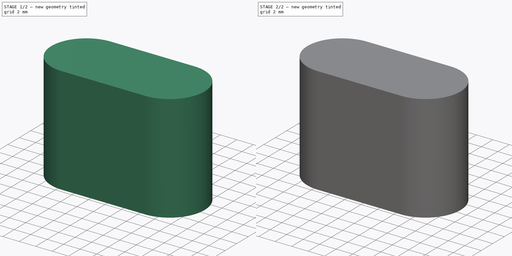
[diagram: build sequence overview — one tinted view per stage of 2, left to right]
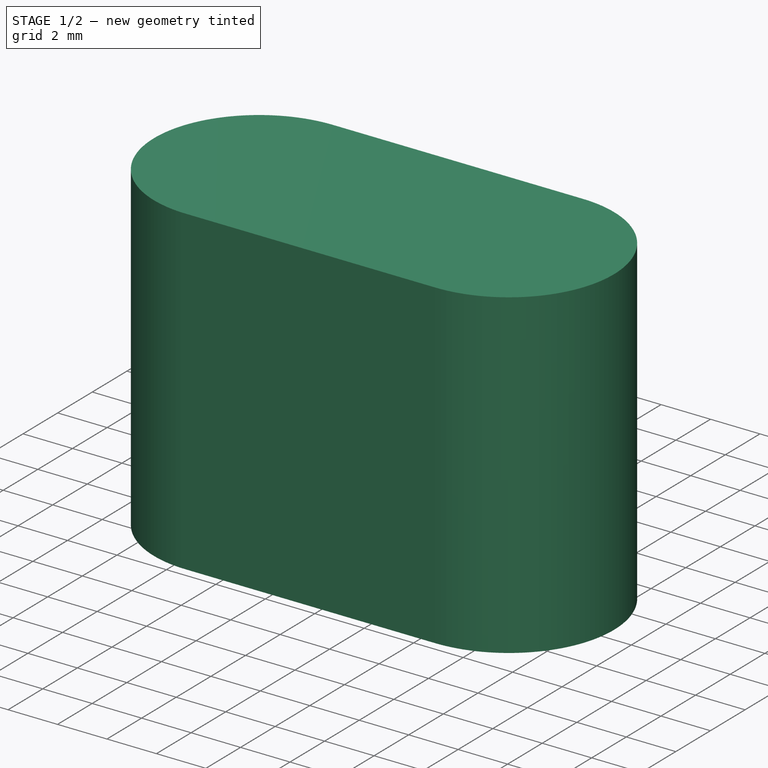
[diagram: stage 1 of 2 — iso view after this stage's code; geometry added in this stage tinted green]
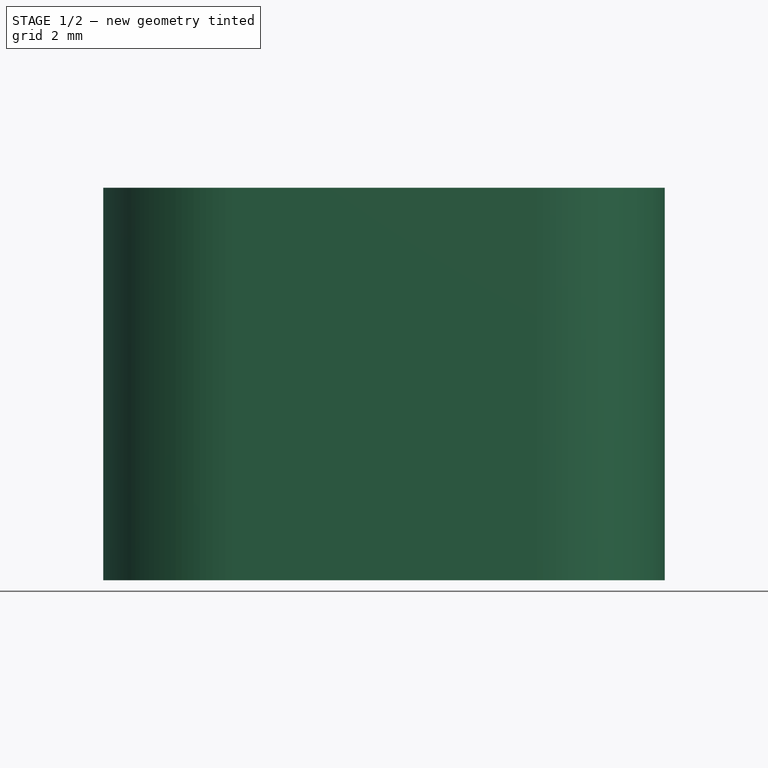
[diagram: stage 1 of 2 — front view after this stage's code; geometry added in this stage tinted green]
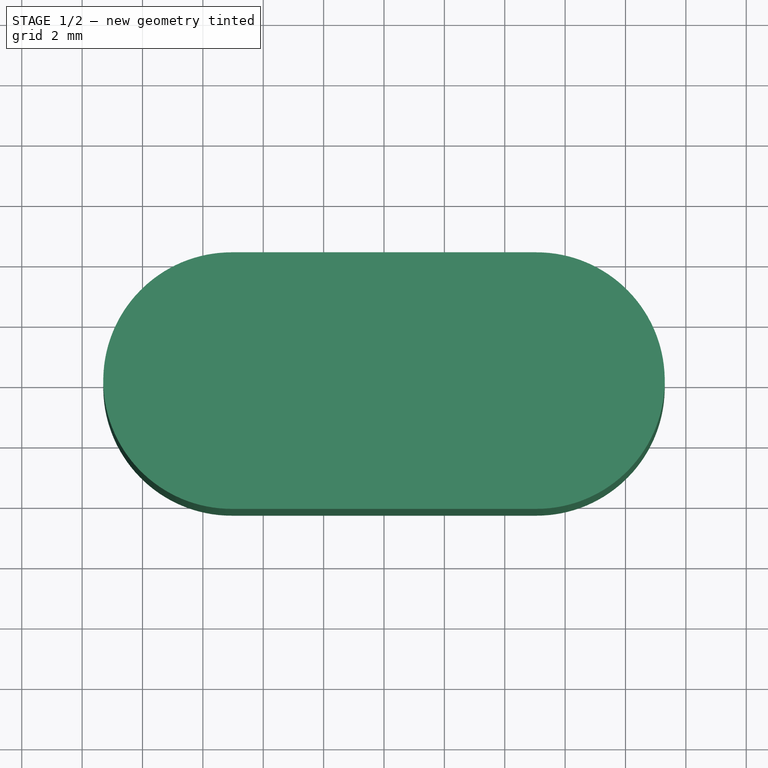
[diagram: stage 1 of 2 — top view after this stage's code; geometry added in this stage tinted green]
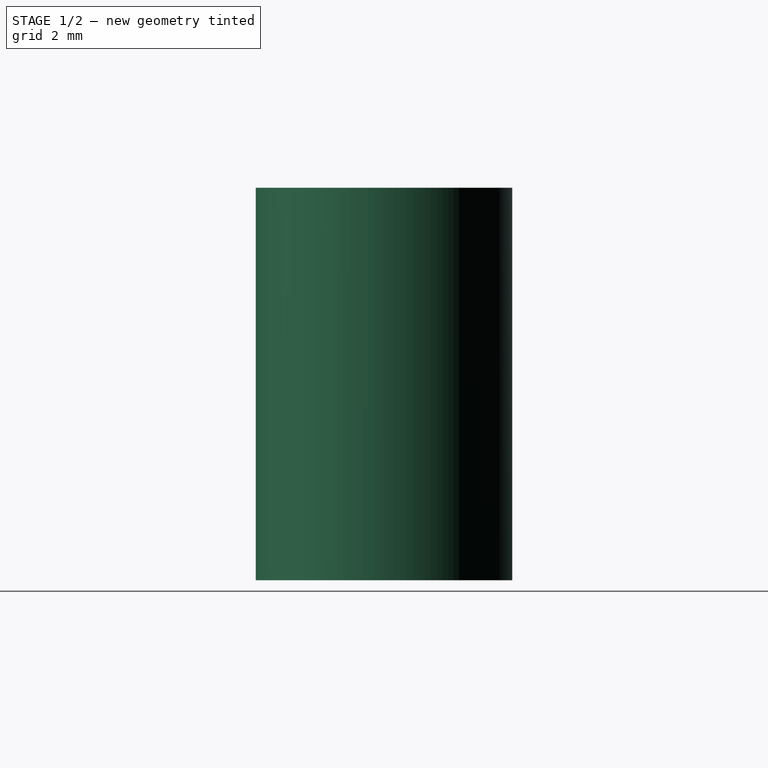
[diagram: stage 1 of 2 — right view after this stage's code; geometry added in this stage tinted green]
FCSTD DOCUMENT  (FreeCAD 0.20R29410 (Git))
Label: MicroSDReaderCap
License: All rights reserved
LicenseURL: http://en.wikipedia.org/wiki/All_rights_reserved
objects: Sketcher::SketchObject×5, PartDesign::Pad×1, PartDesign::SubtractiveLoft×1, PartDesign::Pocket×1, PartDesign::Body×1
note: 12 computed .brp shape members not serialized (recipe doc carries the construction recipe); baked Part::Feature solids carry a one-line shape summary decoded from their .brp

FEATURE [Sketcher::SketchObject] Sketch
  FullyConstrained = true
  MapMode = 5
  Support = -> [XY_Plane]
  sketch-geometry (15):
    g0: LineSegment StartX=-9.3 StartY=-1.4e-15 StartZ=0 EndX=9.3 EndY=-1.4e-15 EndZ=0
    g1: ArcOfCircle CenterX=-5.05 CenterY=-1.5e-15 CenterZ=0 NormalX=0 NormalY=0 NormalZ=1 AngleXU=0 Radius=4.25 StartAngle=1.5708 EndAngle=4.71239
    g2: ArcOfCircle CenterX=5.05 CenterY=-1.3e-15 CenterZ=0 NormalX=0 NormalY=0 NormalZ=1 AngleXU=0 Radius=4.25 StartAngle=4.71239 EndAngle=7.85398
    g3: LineSegment StartX=-5.05 StartY=4.25 StartZ=0 EndX=5.05 EndY=4.25 EndZ=0
    g4: LineSegment StartX=-5.05 StartY=-4.25 StartZ=0 EndX=5.05 EndY=-4.25 EndZ=0
    g5: LineSegment StartX=-6 StartY=2.25 StartZ=0 EndX=6 EndY=2.25 EndZ=0
    g6: LineSegment StartX=6 StartY=2.25 StartZ=0 EndX=6 EndY=-2.25 EndZ=0
    g7: LineSegment StartX=6 StartY=-2.25 StartZ=0 EndX=-6 EndY=-2.25 EndZ=0
    g8: LineSegment StartX=-6 StartY=-2.25 StartZ=0 EndX=-6 EndY=2.25 EndZ=0
    g9: LineSegment StartX=4.4271e-12 StartY=4.25 StartZ=0 EndX=4.4273e-12 EndY=-4.25 EndZ=0
    g10: GeomPoint X=2.2817e-12 Y=-1.2e-15 Z=0
    g11: ArcOfCircle CenterX=-5.05 CenterY=-1.5e-15 CenterZ=0 NormalX=0 NormalY=0 NormalZ=1 AngleXU=0 Radius=3.5 StartAngle=1.5708 EndAngle=4.71239
    g12: ArcOfCircle CenterX=5.05 CenterY=-1.3e-15 CenterZ=0 NormalX=0 NormalY=0 NormalZ=1 AngleXU=0 Radius=3.5 StartAngle=4.71239 EndAngle=7.85398
    g13: LineSegment StartX=-5.05 StartY=-3.5 StartZ=0 EndX=5.05 EndY=-3.5 EndZ=0
    g14: LineSegment StartX=5.05 StartY=3.5 StartZ=0 EndX=-5.05 EndY=3.5 EndZ=0
  constraints (37):
    c: Horizontal(g0)
    c: PointOnObject(g1,g0)
    c: Horizontal(g3)
    c: Horizontal(g4)
    c: PointOnObject(g0,g1)
    c: DistanceY(g1,g1) = 8.5
    c: DistanceX(g0,g0) = 18.6
    c: Tangent(g2,g3) = 1.5708
    c: Tangent(g2,g4) = -1.5708
    c: Tangent(g1,g4) = -1.5708
    c: Tangent(g1,g3) = 1.5708
    c: PointOnObject(g0,g2)
    c: Coincident(g5,g6)
    c: Coincident(g6,g7)
    c: Coincident(g7,g8)
    c: Coincident(g8,g5)
    c: Horizontal(g5)
    c: Horizontal(g7)
    c: Vertical(g6)
    c: Vertical(g8)
    c: PointOnObject(g9,g3)
    c: PointOnObject(g9,g4)
    c: Symmetric(g1,g2,g9)
    c: DistanceX(g5,g5) = 12
    c: DistanceY(g8,g8) = 4.5
    c: PointOnObject(g10,g9)
    c: PointOnObject(g10,g0)
    c: Symmetric(g7,g5,g10)
    c: Coincident(g10,g-1)  '#@#'
    c: Tangent(g11,g13) = -1.5708
    c: Tangent(g13,g12) = -1.5708
    c: Tangent(g12,g14) = -1.5708
    c: Tangent(g14,g11) = -1.5708
    c: Equal(g11,g12)
    c: Coincident(g11,g1)
    c: Coincident(g12,g2)
    c: DistanceY(g11,g11) = 7
FEATURE [Sketcher::SketchObject] Sketch001
  ExternalGeometry = -> [Sketch]
  FullyConstrained = true
  MapMode = 5
  Support = -> [XY_Plane]
  sketch-geometry (4):
    g0: ArcOfCircle CenterX=-5.04997 CenterY=5.28e-14 CenterZ=0 NormalX=0 NormalY=0 NormalZ=1 AngleXU=0 Radius=4.25 StartAngle=1.5708 EndAngle=4.71238
    g1: ArcOfCircle CenterX=5.04997 CenterY=6.14e-14 CenterZ=0 NormalX=0 NormalY=0 NormalZ=1 AngleXU=0 Radius=4.25 StartAngle=4.7124 EndAngle=7.85397
    g2: LineSegment StartX=-5.05 StartY=4.25 StartZ=0 EndX=5.05 EndY=4.25 EndZ=0
    g3: LineSegment StartX=-5.05 StartY=-4.25 StartZ=0 EndX=5.05 EndY=-4.25 EndZ=0
  constraints (10):
    c: Coincident(g0,g-3)
    c: Coincident(g0,g-3)
    c: Coincident(g1,g-4)
    c: Coincident(g1,g-4)
    c: Equal(g-4,g1)
    c: Equal(g-3,g0)
    c: Coincident(g2,g0)
    c: Coincident(g2,g1)
    c: Coincident(g3,g0)
    c: Coincident(g3,g1)
FEATURE [PartDesign::Pad] Pad
  Direction = (0,0,1)
  Length = 13
  Length2 = 10
  Profile = -> Sketch001
  ReferenceAxis = -> Sketch001 [N_Axis]
  Type = 0
FEATURE [Sketcher::SketchObject] Sketch002
  ExternalGeometry = -> [Sketch]
  FullyConstrained = true
  MapMode = 5
  Support = -> [XY_Plane]
  sketch-geometry (8):
    g0: LineSegment StartX=-6.12 StartY=2.37 StartZ=0 EndX=6.12 EndY=2.37 EndZ=0
    g1: LineSegment StartX=6.12 StartY=2.37 StartZ=0 EndX=6.12 EndY=-2.37 EndZ=0
    g2: LineSegment StartX=6.12 StartY=-2.37 StartZ=0 EndX=-6.12 EndY=-2.37 EndZ=0
    g3: LineSegment StartX=-6.12 StartY=-2.37 StartZ=0 EndX=-6.12 EndY=2.37 EndZ=0
    g4: LineSegment StartX=-6 StartY=2.25 StartZ=0 EndX=-6 EndY=2.37 EndZ=0
    g5: LineSegment StartX=-6 StartY=-2.25 StartZ=0 EndX=-6.12 EndY=-2.25 EndZ=0
    g6: LineSegment StartX=6 StartY=-2.25 StartZ=0 EndX=6 EndY=-2.37 EndZ=0
    g7: LineSegment StartX=6 StartY=2.25 StartZ=0 EndX=6.12 EndY=2.25 EndZ=0
  constraints (24):
    c: Coincident(g0,g1)
    c: Coincident(g1,g2)
    c: Coincident(g2,g3)
    c: Coincident(g3,g0)
    c: Horizontal(g0)
    c: Horizontal(g2)
    c: Vertical(g1)
    c: Vertical(g3)
    c: Coincident(g4,g-3)
    c: PointOnObject(g4,g0)
    c: Vertical(g4)
    c: Coincident(g5,g-3)
    c: PointOnObject(g5,g3)
    c: Horizontal(g5)
    c: Coincident(g6,g-4)
    c: PointOnObject(g6,g2)
    c: Vertical(g6)
    c: Coincident(g7,g-4)
    c: PointOnObject(g7,g1)
    c: Horizontal(g7)
    c: Equal(g4,g5)
    c: Equal(g5,g6)
    c: Equal(g6,g7)
    c: DistanceY(g4,g4) = 0.12
FEATURE [Sketcher::SketchObject] Sketch003
  AttachmentOffset = pos=(0,0,12) rot=(0,0,1;0rad)
  ExternalGeometry = -> [Sketch]
  FullyConstrained = true
  MapMode = 5
  Placement = pos=(0,0,12) rot=(0,0,1;0rad)
  Support = -> [XY_Plane]
  sketch-geometry (4):
    g0: LineSegment StartX=-6 StartY=2.25 StartZ=0 EndX=6 EndY=2.25 EndZ=0
    g1: LineSegment StartX=6 StartY=2.25 StartZ=0 EndX=6 EndY=-2.25 EndZ=0
    g2: LineSegment StartX=6 StartY=-2.25 StartZ=0 EndX=-6 EndY=-2.25 EndZ=0
    g3: LineSegment StartX=-6 StartY=-2.25 StartZ=0 EndX=-6 EndY=2.25 EndZ=0
  constraints (8):
    c: Coincident(g0,g1)
    c: Coincident(g1,g2)
    c: Coincident(g2,g3)
    c: Coincident(g3,g0)
    c: Coincident(g0,g-3)
    c: Coincident(g1,g-4)
    c: Coincident(g0,g-4)
    c: Coincident(g2,g-3)
FEATURE [PartDesign::SubtractiveLoft] SubtractiveLoft
  BaseFeature = -> Pad
  Closed = false
  Profile = -> Sketch002
  Ruled = false
  Sections = -> [Sketch003]
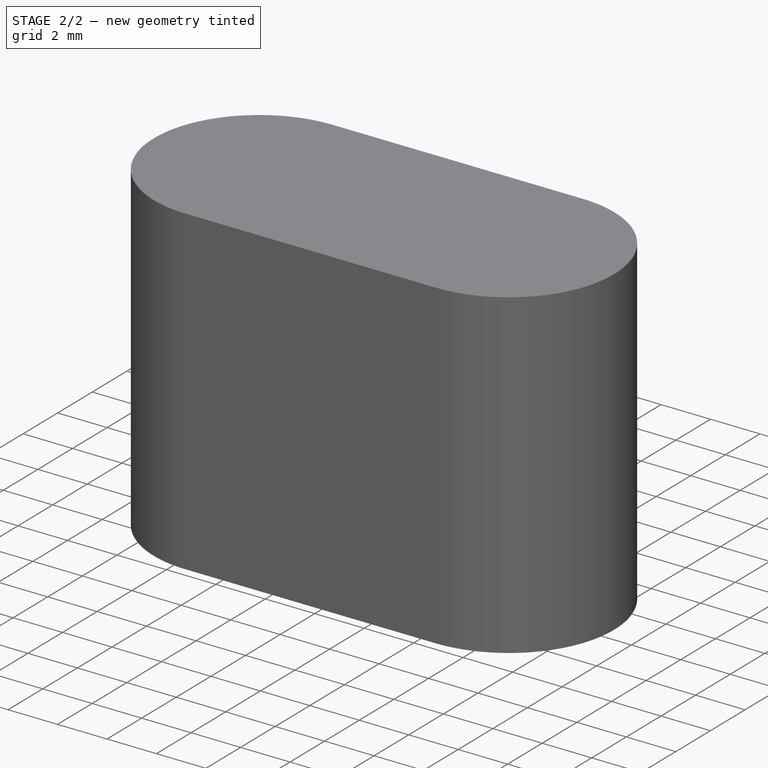
[diagram: stage 2 of 2 — iso view after this stage's code; geometry added in this stage tinted green]
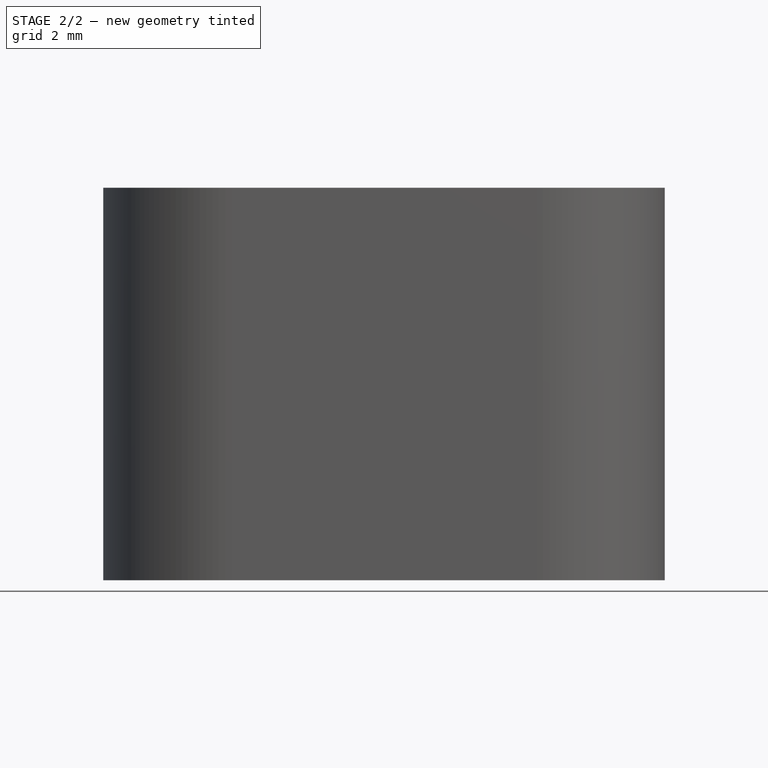
[diagram: stage 2 of 2 — front view after this stage's code; geometry added in this stage tinted green]
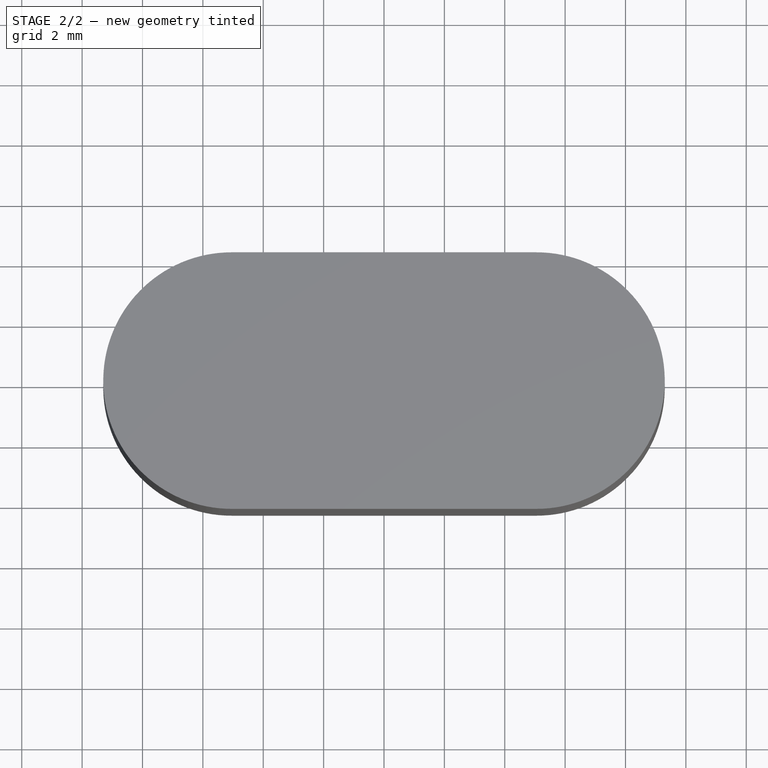
[diagram: stage 2 of 2 — top view after this stage's code; geometry added in this stage tinted green]
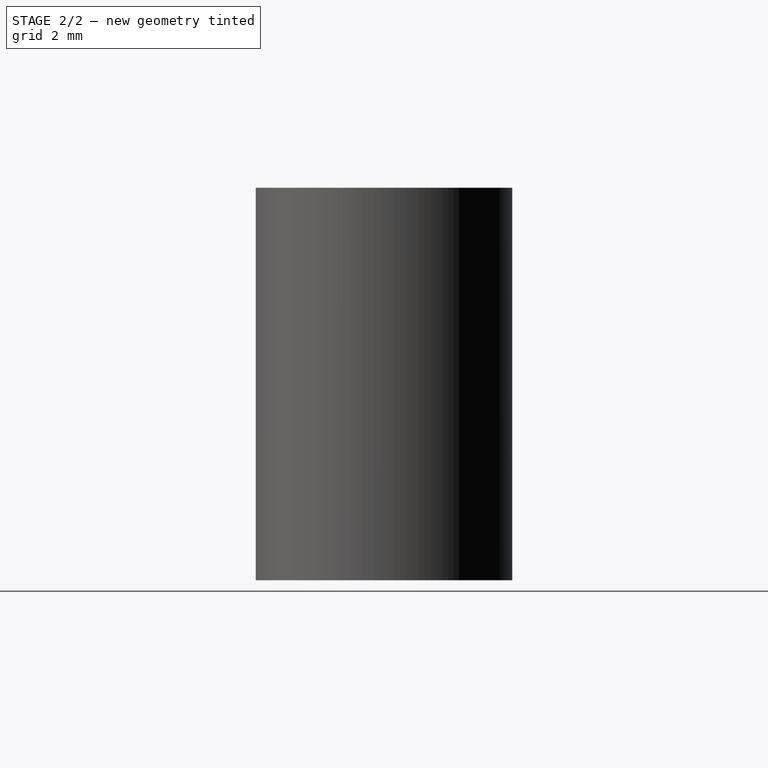
[diagram: stage 2 of 2 — right view after this stage's code; geometry added in this stage tinted green]
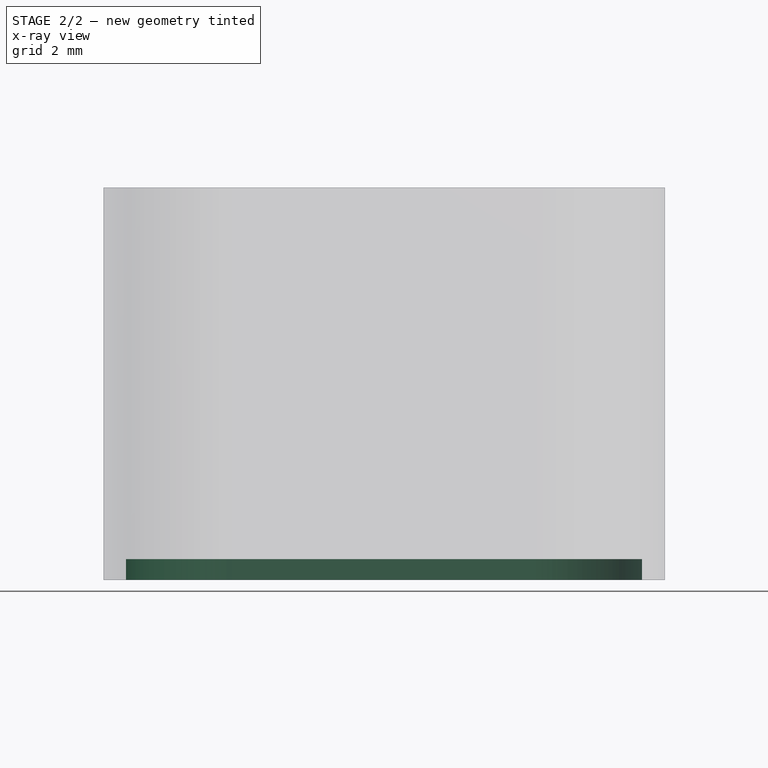
[diagram: stage 2 of 2 — x-ray composite at the front view; earlier geometry ghosted, this stage's added geometry solid]
FEATURE [Sketcher::SketchObject] Sketch004
  ExternalGeometry = -> [Sketch]
  FullyConstrained = true
  MapMode = 5
  Support = -> [XY_Plane]
  sketch-geometry (4):
    g0: ArcOfCircle CenterX=-5.05 CenterY=-1.5e-15 CenterZ=0 NormalX=0 NormalY=0 NormalZ=1 AngleXU=0 Radius=3.5 StartAngle=1.5708 EndAngle=4.71239
    g1: ArcOfCircle CenterX=5.05 CenterY=-1.3e-15 CenterZ=0 NormalX=0 NormalY=0 NormalZ=1 AngleXU=0 Radius=3.5 StartAngle=4.71239 EndAngle=7.85398
    g2: LineSegment StartX=-5.05 StartY=-3.5 StartZ=0 EndX=5.05 EndY=-3.5 EndZ=0
    g3: LineSegment StartX=5.05 StartY=3.5 StartZ=0 EndX=-5.05 EndY=3.5 EndZ=0
  constraints (8):
    c: Tangent(g0,g2) = -1.5708
    c: Tangent(g2,g1) = -1.5708
    c: Tangent(g1,g3) = -1.5708
    c: Tangent(g3,g0) = -1.5708
    c: Equal(g0,g1)
    c: Coincident(g0,g-3)
    c: Coincident(g1,g-4)
    c: Equal(g1,g-4)
FEATURE [PartDesign::Pocket] Pocket
  BaseFeature = -> SubtractiveLoft
  Direction = (0,0,-1)
  Length = 0.7
  Length2 = 5
  Profile = -> Sketch004
  ReferenceAxis = -> Sketch004 [N_Axis]
  Reversed = true
  Type = 0
FEATURE [PartDesign::Body] Body
  Group = -> [Sketch,Sketch001,Pad,Sketch002,Sketch003,SubtractiveLoft,Sketch004,Pocket]
  Origin = -> Origin
  Tip = -> Pocket
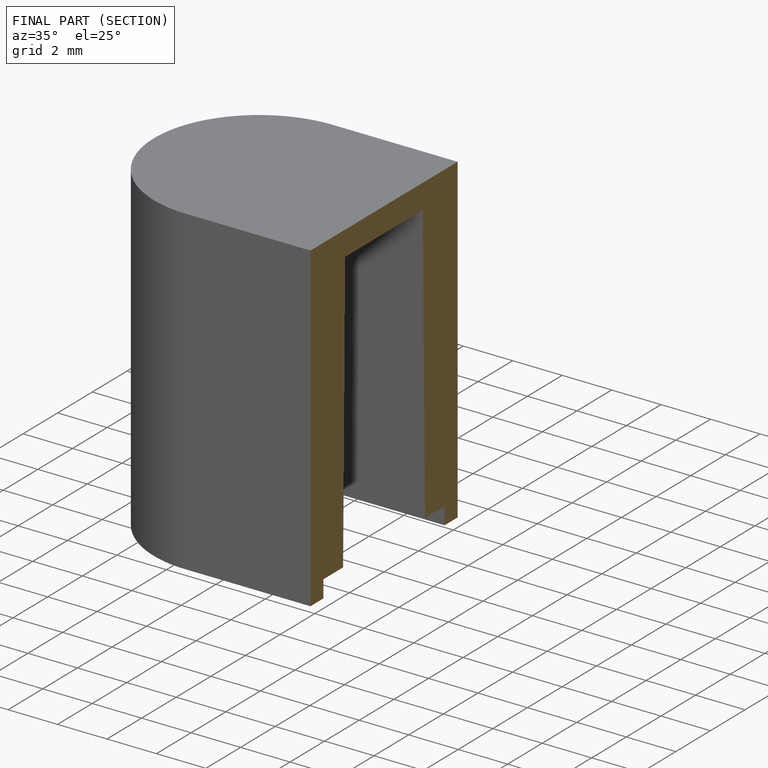
[diagram: finished part — half-section view (interior)]
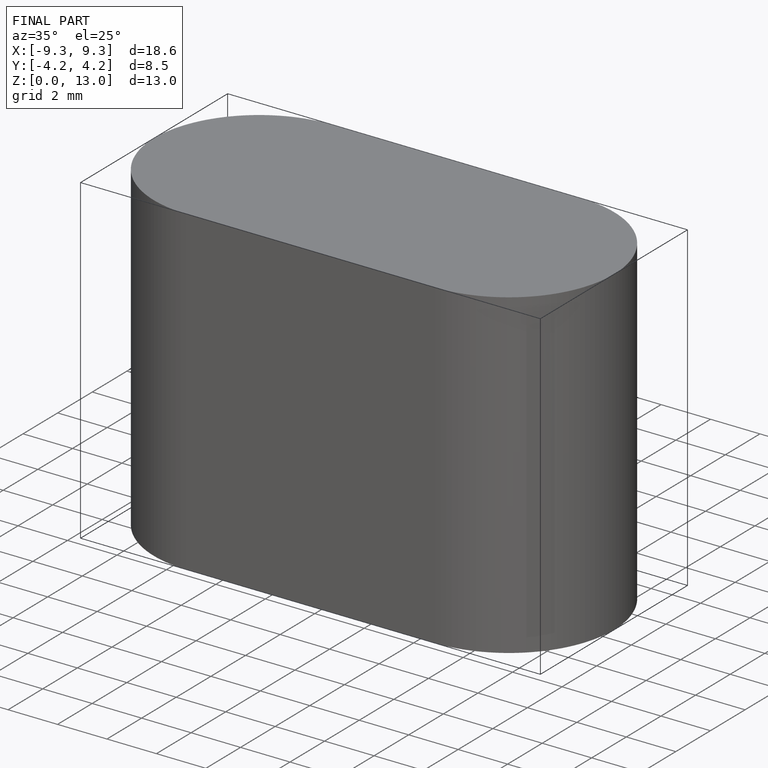
[diagram: finished part — iso view with bounding-box wireframe]
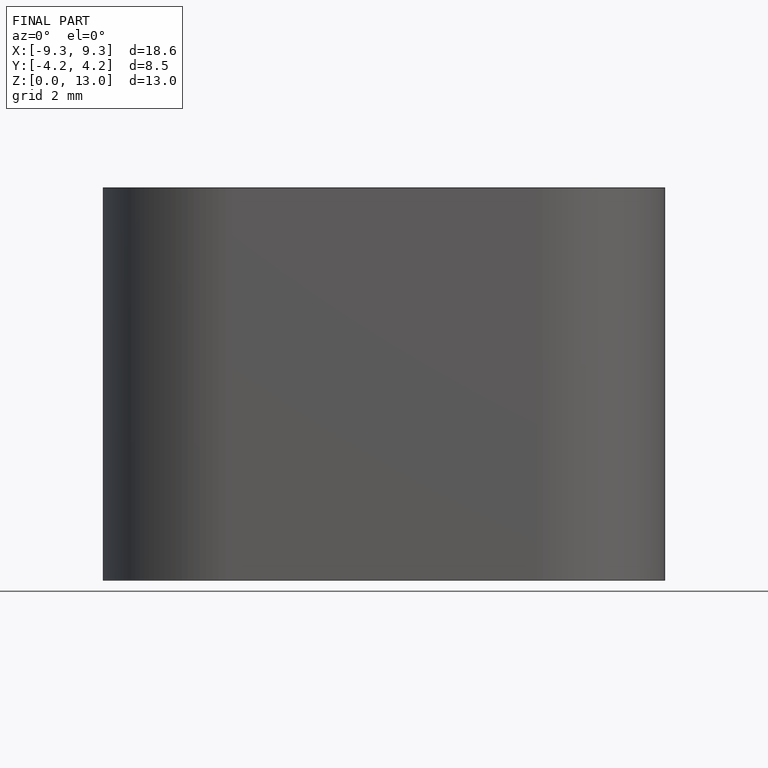
[diagram: finished part — front view with bounding-box wireframe]
